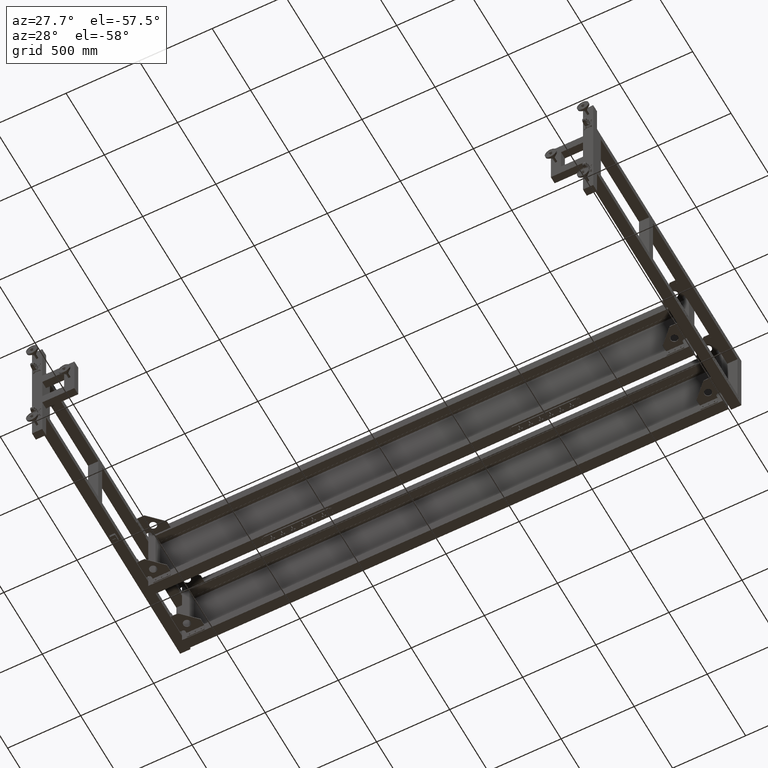
[diagram: clean part render]
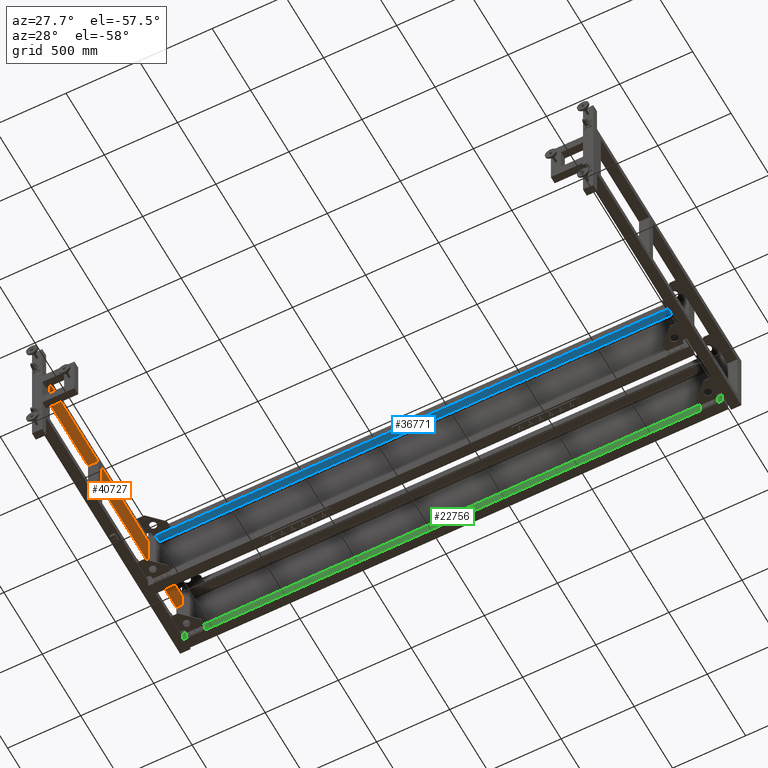
[diagram: same view with three faces highlighted in distinct colors, each labeled with its STEP entity id]
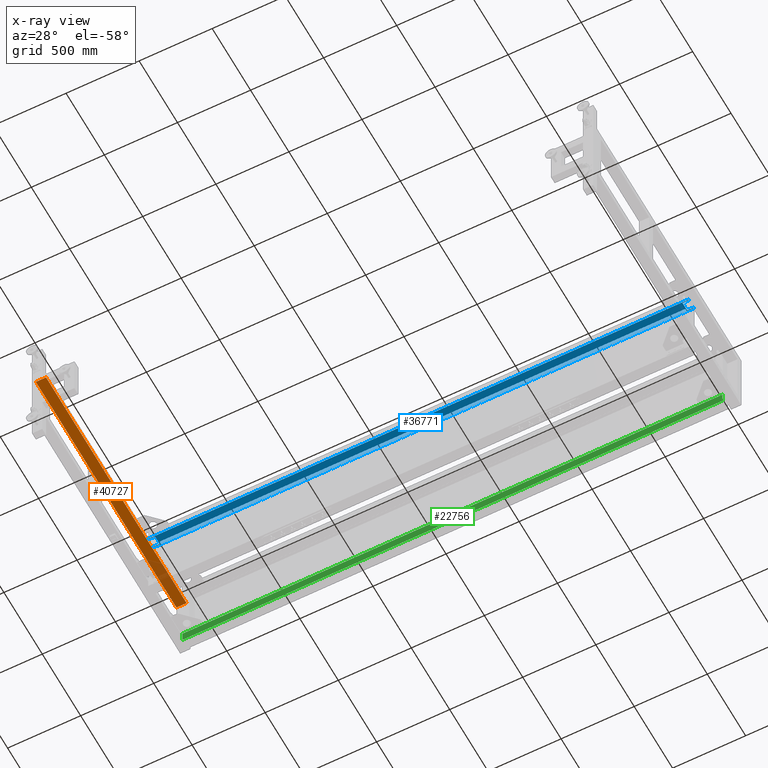
[diagram: x-ray of the same camera — body ghosted, the three highlighted faces saturated]
A machine part, auxiliary view with three faces highlighted in distinct colors.
The next image is the same camera in x-ray (body ghosted, the three faces saturated) — at least one of them is partly hidden behind the body in this view.
Their STEP definitions:

[orange] entity #40727 — the highlighted planar face has unit normal (-0, 0, 1).
#3018 = DIRECTION ( 'NONE',  ( -1.000000000000000078E-15, -1.000000000000000000, 0.000000000000000000 ) ) ;
#5408 = EDGE_CURVE ( 'NONE', #36055, #50908, #72533, .T. ) ;
#7190 = VECTOR ( 'NONE', #3018, 1000.000000000000000 ) ;
#8014 = EDGE_CURVE ( 'NONE', #50908, #57116, #77255, .T. ) ;
#8567 = CARTESIAN_POINT ( 'NONE',  ( -1338.172487437185055, 919.4410804020136538, 199.9999999999999716 ) ) ;
#9923 = VECTOR ( 'NONE', #45814, 1000.000000000000000 ) ;
#10126 = EDGE_CURVE ( 'NONE', #47010, #36055, #63568, .T. ) ;
#11009 = VECTOR ( 'NONE', #24042, 1000.000000000000000 ) ;
#11845 = EDGE_CURVE ( 'NONE', #41204, #73875, #48027, .T. ) ;
#12558 = CARTESIAN_POINT ( 'NONE',  ( -1268.172487437185055, -844.5589195979888473, 199.9999999999999716 ) ) ;
#16021 = CARTESIAN_POINT ( 'NONE',  ( -1268.172487437185964, 986.4410804020135402, 199.9999999999999716 ) ) ;
#16484 = CARTESIAN_POINT ( 'NONE',  ( -1268.172487437185964, 926.9410804020111527, 199.9999999999999716 ) ) ;
#19384 = VERTEX_POINT ( 'NONE', #41719 ) ;
#23184 = EDGE_LOOP ( 'NONE', ( #40573, #29494, #33352, #32423, #46770, #66275, #60953, #49711 ) ) ;
#24042 = DIRECTION ( 'NONE',  ( 0.000000000000000000, 1.000000000000000000, 0.000000000000000000 ) ) ;
#26259 = DIRECTION ( 'NONE',  ( -1.000000000000000000, 0.000000000000000000, 0.000000000000000000 ) ) ;
#27501 = DIRECTION ( 'NONE',  ( -0.000000000000000000, 0.000000000000000000, 1.000000000000000000 ) ) ;
#27959 = CARTESIAN_POINT ( 'NONE',  ( -1268.172487437185964, 996.9410804020109254, 199.9999999999999716 ) ) ;
#28806 = CARTESIAN_POINT ( 'NONE',  ( -1338.172487437185055, 986.4410804020136538, 199.9999999999999716 ) ) ;
#29494 = ORIENTED_EDGE ( 'NONE', *, *, #10126, .T. ) ;
#32423 = ORIENTED_EDGE ( 'NONE', *, *, #8014, .T. ) ;
#33015 = CARTESIAN_POINT ( 'NONE',  ( -1268.156444386293742, 926.9410804020111527, 199.9999999999999716 ) ) ;
#33352 = ORIENTED_EDGE ( 'NONE', *, *, #5408, .T. ) ;
#34577 = EDGE_CURVE ( 'NONE', #47010, #41204, #44266, .T. ) ;
#36055 = VERTEX_POINT ( 'NONE', #67116 ) ;
#37479 = EDGE_CURVE ( 'NONE', #57116, #56806, #74170, .T. ) ;
#40385 = CARTESIAN_POINT ( 'NONE',  ( -1338.172487437185964, 986.4410804020109254, 199.9999999999999716 ) ) ;
#40573 = ORIENTED_EDGE ( 'NONE', *, *, #34577, .F. ) ;
#40727 = ADVANCED_FACE ( 'NONE', ( #50845 ), #63917, .F. ) ;
#41204 = VERTEX_POINT ( 'NONE', #40385 ) ;
#41719 = CARTESIAN_POINT ( 'NONE',  ( -1268.172487437185055, -844.5589195979888473, 199.9999999999999716 ) ) ;
#42945 = EDGE_CURVE ( 'NONE', #73875, #19384, #72097, .T. ) ;
#44266 = LINE ( 'NONE', #74934, #49059 ) ;
#44664 = VECTOR ( 'NONE', #65942, 1000.000000000000000 ) ;
#45814 = DIRECTION ( 'NONE',  ( -1.000000000000000000, 1.585669478376821542E-15, -0.000000000000000000 ) ) ;
#46061 = CARTESIAN_POINT ( 'NONE',  ( -1268.172487437185055, 919.4410804020135402, 199.9999999999999716 ) ) ;
#46153 = CARTESIAN_POINT ( 'NONE',  ( -1268.156444386293742, 986.4410804020136538, 199.9999999999999716 ) ) ;
#46519 = EDGE_CURVE ( 'NONE', #19384, #56806, #56746, .T. ) ;
#46770 = ORIENTED_EDGE ( 'NONE', *, *, #37479, .T. ) ;
#46968 = DIRECTION ( 'NONE',  ( -1.000000000000000078E-15, -1.000000000000000000, -0.000000000000000000 ) ) ;
#47010 = VERTEX_POINT ( 'NONE', #16021 ) ;
#48027 = LINE ( 'NONE', #28806, #53808 ) ;
#49059 = VECTOR ( 'NONE', #26259, 1000.000000000000000 ) ;
#49711 = ORIENTED_EDGE ( 'NONE', *, *, #11845, .F. ) ;
#50605 = CARTESIAN_POINT ( 'NONE',  ( -1338.172487437185055, -844.5589195979888473, 199.9999999999999716 ) ) ;
#50845 = FACE_OUTER_BOUND ( 'NONE', #23184, .T. ) ;
#50908 = VERTEX_POINT ( 'NONE', #33015 ) ;
#52074 = DIRECTION ( 'NONE',  ( 1.000000000000000000, 0.000000000000000000, 0.000000000000000000 ) ) ;
#53785 = DIRECTION ( 'NONE',  ( -1.000000000000000078E-15, -1.000000000000000000, -0.000000000000000000 ) ) ;
#53808 = VECTOR ( 'NONE', #53785, 1000.000000000000000 ) ;
#55804 = CARTESIAN_POINT ( 'NONE',  ( -1268.156444386293742, 919.4410804020135402, 199.9999999999999716 ) ) ;
#56746 = LINE ( 'NONE', #12558, #11009 ) ;
#56806 = VERTEX_POINT ( 'NONE', #46061 ) ;
#57116 = VERTEX_POINT ( 'NONE', #55804 ) ;
#58602 = CARTESIAN_POINT ( 'NONE',  ( -1338.172487437185055, 986.4410804020136538, 199.9999999999999716 ) ) ;
#60953 = ORIENTED_EDGE ( 'NONE', *, *, #42945, .F. ) ;
#63568 = LINE ( 'NONE', #27959, #7190 ) ;
#63917 = PLANE ( 'NONE',  #79426 ) ;
#65942 = DIRECTION ( 'NONE',  ( 1.000000000000000000, 0.000000000000000000, 0.000000000000000000 ) ) ;
#66275 = ORIENTED_EDGE ( 'NONE', *, *, #46519, .F. ) ;
#67116 = CARTESIAN_POINT ( 'NONE',  ( -1268.172487437185964, 926.9410804020111527, 199.9999999999999716 ) ) ;
#67316 = VECTOR ( 'NONE', #46968, 1000.000000000000000 ) ;
#72097 = LINE ( 'NONE', #77425, #44664 ) ;
#72533 = LINE ( 'NONE', #16484, #80387 ) ;
#73875 = VERTEX_POINT ( 'NONE', #50605 ) ;
#74170 = LINE ( 'NONE', #8567, #9923 ) ;
#74934 = CARTESIAN_POINT ( 'NONE',  ( -1338.172487437185964, 986.4410804020109254, 199.9999999999999716 ) ) ;
#77255 = LINE ( 'NONE', #46153, #67316 ) ;
#77425 = CARTESIAN_POINT ( 'NONE',  ( -1338.172487437185055, -844.5589195979888473, 199.9999999999999716 ) ) ;
#79074 = DIRECTION ( 'NONE',  ( 1.000000000000000000, -4.448884876874220047E-16, 0.000000000000000000 ) ) ;
#79426 = AXIS2_PLACEMENT_3D ( 'NONE', #58602, #27501, #52074 ) ;
#80387 = VECTOR ( 'NONE', #79074, 1000.000000000000000 ) ;

[blue] entity #36771 — the highlighted planar face has unit normal (0, -0, 1).
#586 = EDGE_LOOP ( 'NONE', ( #5231, #52646, #36741, #74212, #36667, #5449, #17699, #54605, #12137, #21869, #56340, #38493 ) ) ;
#1875 = DIRECTION ( 'NONE',  ( 3.373438344553770128E-16, -1.000000000000000000, -3.396508223080412663E-15 ) ) ;
#2452 = DIRECTION ( 'NONE',  ( 0.000000000000000000, -1.000000000000000000, 4.000602769257180823E-15 ) ) ;
#2689 = LINE ( 'NONE', #3079, #34941 ) ;
#2862 = LINE ( 'NONE', #8574, #28736 ) ;
#2875 = EDGE_CURVE ( 'NONE', #65112, #26776, #43229, .T. ) ;
#3079 = CARTESIAN_POINT ( 'NONE',  ( -1266.172487437185964, 556.9410804020109254, 230.0000000000000853 ) ) ;
#3788 = EDGE_CURVE ( 'NONE', #20792, #51738, #25923, .T. ) ;
#5231 = ORIENTED_EDGE ( 'NONE', *, *, #3788, .F. ) ;
#5449 = ORIENTED_EDGE ( 'NONE', *, *, #23958, .F. ) ;
#6130 = LINE ( 'NONE', #13914, #44316 ) ;
#6294 = LINE ( 'NONE', #43935, #43654 ) ;
#7616 = CARTESIAN_POINT ( 'NONE',  ( 2384.827512562816082, 491.9410804020113801, 229.9999999999998579 ) ) ;
#7666 = FACE_OUTER_BOUND ( 'NONE', #586, .T. ) ;
#8159 = VECTOR ( 'NONE', #20198, 1000.000000000000000 ) ;
#8574 = CARTESIAN_POINT ( 'NONE',  ( -1216.601776759067889, 555.4410804020136538, 230.0000000000001137 ) ) ;
#9496 = VERTEX_POINT ( 'NONE', #68580 ) ;
#10407 = LINE ( 'NONE', #79936, #46553 ) ;
#10919 = VERTEX_POINT ( 'NONE', #37755 ) ;
#11540 = VERTEX_POINT ( 'NONE', #38626 ) ;
#12040 = DIRECTION ( 'NONE',  ( -1.000000000000000000, -0.000000000000000000, 0.000000000000000000 ) ) ;
#12137 = ORIENTED_EDGE ( 'NONE', *, *, #70474, .F. ) ;
#12845 = VECTOR ( 'NONE', #14617, 1000.000000000000000 ) ;
#13157 = ORIENTED_EDGE ( 'NONE', *, *, #24142, .T. ) ;
#13496 = DIRECTION ( 'NONE',  ( 1.000000000000000000, -5.656706986880889162E-17, -1.864484265141417748E-31 ) ) ;
#13914 = CARTESIAN_POINT ( 'NONE',  ( -1267.172487437185964, 551.9410804020110390, 230.0000000000000568 ) ) ;
#14617 = DIRECTION ( 'NONE',  ( -1.000000000000000000, -2.782626725923983129E-16, -1.864484265141417748E-31 ) ) ;
#14619 = FACE_BOUND ( 'NONE', #40963, .T. ) ;
#15080 = CARTESIAN_POINT ( 'NONE',  ( 2429.827512562816082, 486.9410804020113801, 229.9999999999998295 ) ) ;
#16002 = VERTEX_POINT ( 'NONE', #43006 ) ;
#16060 = VECTOR ( 'NONE', #28223, 1000.000000000000000 ) ;
#16583 = VECTOR ( 'NONE', #1875, 1000.000000000000000 ) ;
#17057 = CARTESIAN_POINT ( 'NONE',  ( -1221.172487437186192, 491.9410804020110390, 229.9999999999998579 ) ) ;
#17082 = VECTOR ( 'NONE', #50332, 1000.000000000000000 ) ;
#17699 = ORIENTED_EDGE ( 'NONE', *, *, #26116, .T. ) ;
#18034 = EDGE_CURVE ( 'NONE', #75148, #10919, #32938, .T. ) ;
#18202 = DIRECTION ( 'NONE',  ( -2.216956027235894459E-16, 1.000000000000000000, 3.396508223080412663E-15 ) ) ;
#18307 = CARTESIAN_POINT ( 'NONE',  ( 681.8275125628146043, 536.9410804020135402, 230.0000000000001421 ) ) ;
#19100 = CARTESIAN_POINT ( 'NONE',  ( 2380.256801884697779, 555.4410804020139949, 230.0000000000001137 ) ) ;
#19910 = LINE ( 'NONE', #18307, #38225 ) ;
#20198 = DIRECTION ( 'NONE',  ( 1.000000000000000000, 4.543257172554223644E-16, 0.000000000000000000 ) ) ;
#20285 = AXIS2_PLACEMENT_3D ( 'NONE', #27690, #21182, #34220 ) ;
#20397 = VERTEX_POINT ( 'NONE', #77767 ) ;
#20648 = VERTEX_POINT ( 'NONE', #62553 ) ;
#20792 = VERTEX_POINT ( 'NONE', #15080 ) ;
#21182 = DIRECTION ( 'NONE',  ( 1.543121034614948572E-30, -3.396508223080412663E-15, 1.000000000000000000 ) ) ;
#21869 = ORIENTED_EDGE ( 'NONE', *, *, #39948, .T. ) ;
#22498 = EDGE_CURVE ( 'NONE', #62065, #20397, #38288, .T. ) ;
#23958 = EDGE_CURVE ( 'NONE', #36693, #27195, #6130, .T. ) ;
#24142 = EDGE_CURVE ( 'NONE', #9496, #11540, #2862, .T. ) ;
#25209 = DIRECTION ( 'NONE',  ( -1.000000000000000000, -4.543257172554223644E-16, 0.000000000000000000 ) ) ;
#25923 = LINE ( 'NONE', #68469, #59555 ) ;
#26116 = EDGE_CURVE ( 'NONE', #36693, #77341, #2689, .T. ) ;
#26554 = CARTESIAN_POINT ( 'NONE',  ( -1266.172487437185964, 486.9410804020109822, 229.9999999999998295 ) ) ;
#26776 = VERTEX_POINT ( 'NONE', #52210 ) ;
#27195 = VERTEX_POINT ( 'NONE', #45122 ) ;
#27690 = CARTESIAN_POINT ( 'NONE',  ( -566.1724874371851683, 556.9410804020109254, 230.0000000000000853 ) ) ;
#27737 = VECTOR ( 'NONE', #28115, 1000.000000000000000 ) ;
#28010 = VECTOR ( 'NONE', #38715, 1000.000000000000000 ) ;
#28115 = DIRECTION ( 'NONE',  ( -1.156482317317875916E-16, -1.000000000000000000, -3.396508223080412663E-15 ) ) ;
#28223 = DIRECTION ( 'NONE',  ( -1.000000000000000000, -4.311960709090649200E-16, -9.253252722517677530E-32 ) ) ;
#28736 = VECTOR ( 'NONE', #2452, 1000.000000000000000 ) ;
#30489 = CARTESIAN_POINT ( 'NONE',  ( -566.1724874371851683, 556.9410804020109254, 230.0000000000000853 ) ) ;
#31881 = CARTESIAN_POINT ( 'NONE',  ( 2429.827512562815627, 556.9410804020113801, 230.0000000000000853 ) ) ;
#32588 = CARTESIAN_POINT ( 'NONE',  ( 2430.827512562816082, 491.9410804020113801, 229.9999999999998579 ) ) ;
#32938 = LINE ( 'NONE', #7616, #16583 ) ;
#34220 = DIRECTION ( 'NONE',  ( 4.543257172554223644E-16, -1.000000000000000000, -3.396508223080412663E-15 ) ) ;
#34941 = VECTOR ( 'NONE', #64042, 1000.000000000000000 ) ;
#36667 = ORIENTED_EDGE ( 'NONE', *, *, #43364, .F. ) ;
#36693 = VERTEX_POINT ( 'NONE', #44067 ) ;
#36741 = ORIENTED_EDGE ( 'NONE', *, *, #22498, .T. ) ;
#36771 = ADVANCED_FACE ( 'NONE', ( #7666, #14619 ), #51435, .F. ) ;
#37058 = DIRECTION ( 'NONE',  ( 2.216956027235894459E-16, -1.000000000000000000, 4.000602769257180823E-15 ) ) ;
#37755 = CARTESIAN_POINT ( 'NONE',  ( 2384.827512562816082, 491.9410804020113801, 229.9999999999998579 ) ) ;
#38225 = VECTOR ( 'NONE', #25209, 1000.000000000000000 ) ;
#38288 = LINE ( 'NONE', #44848, #40247 ) ;
#38493 = ORIENTED_EDGE ( 'NONE', *, *, #46594, .T. ) ;
#38626 = CARTESIAN_POINT ( 'NONE',  ( -1216.601776759067889, 536.9410804020129717, 230.0000000000000284 ) ) ;
#38715 = DIRECTION ( 'NONE',  ( 1.000000000000000000, 2.216956027235894459E-16, 0.000000000000000000 ) ) ;
#39948 = EDGE_CURVE ( 'NONE', #16002, #75148, #58802, .T. ) ;
#40247 = VECTOR ( 'NONE', #63675, 1000.000000000000000 ) ;
#40963 = EDGE_LOOP ( 'NONE', ( #65464, #77193, #71846, #13157 ) ) ;
#42100 = LINE ( 'NONE', #67049, #16060 ) ;
#43006 = CARTESIAN_POINT ( 'NONE',  ( 2429.827512562815627, 551.9410804020114938, 230.0000000000000568 ) ) ;
#43229 = LINE ( 'NONE', #19100, #49438 ) ;
#43364 = EDGE_CURVE ( 'NONE', #27195, #20648, #59229, .T. ) ;
#43654 = VECTOR ( 'NONE', #12040, 1000.000000000000000 ) ;
#43779 = LINE ( 'NONE', #31881, #17082 ) ;
#43935 = CARTESIAN_POINT ( 'NONE',  ( -1267.172487437185964, 491.9410804020110390, 229.9999999999998579 ) ) ;
#44067 = CARTESIAN_POINT ( 'NONE',  ( -1266.172487437185964, 551.9410804020110390, 230.0000000000000568 ) ) ;
#44316 = VECTOR ( 'NONE', #13496, 1000.000000000000000 ) ;
#44848 = CARTESIAN_POINT ( 'NONE',  ( -1266.172487437185964, 556.9410804020109254, 230.0000000000000853 ) ) ;
#44962 = CARTESIAN_POINT ( 'NONE',  ( 2384.827512562815627, 551.9410804020113801, 230.0000000000000568 ) ) ;
#45122 = CARTESIAN_POINT ( 'NONE',  ( -1221.172487437186192, 551.9410804020110390, 230.0000000000000568 ) ) ;
#46345 = CARTESIAN_POINT ( 'NONE',  ( -1266.172487437185964, 556.9410804020109254, 230.0000000000000853 ) ) ;
#46553 = VECTOR ( 'NONE', #53395, 1000.000000000000000 ) ;
#46594 = EDGE_CURVE ( 'NONE', #10919, #51738, #52265, .T. ) ;
#47173 = VERTEX_POINT ( 'NONE', #79007 ) ;
#49438 = VECTOR ( 'NONE', #37058, 1000.000000000000000 ) ;
#50332 = DIRECTION ( 'NONE',  ( -2.216956027235894459E-16, 1.000000000000000000, 3.396508223080412663E-15 ) ) ;
#51285 = LINE ( 'NONE', #30489, #8159 ) ;
#51435 = PLANE ( 'NONE',  #20285 ) ;
#51738 = VERTEX_POINT ( 'NONE', #59442 ) ;
#52210 = CARTESIAN_POINT ( 'NONE',  ( 2380.256801884697779, 536.9410804020133128, 230.0000000000000284 ) ) ;
#52265 = LINE ( 'NONE', #32588, #28010 ) ;
#52646 = ORIENTED_EDGE ( 'NONE', *, *, #77106, .F. ) ;
#53395 = DIRECTION ( 'NONE',  ( 1.000000000000000000, 4.543257172554223644E-16, 0.000000000000000000 ) ) ;
#54605 = ORIENTED_EDGE ( 'NONE', *, *, #55486, .T. ) ;
#54897 = EDGE_CURVE ( 'NONE', #65112, #9496, #42100, .T. ) ;
#55486 = EDGE_CURVE ( 'NONE', #77341, #47173, #51285, .T. ) ;
#56340 = ORIENTED_EDGE ( 'NONE', *, *, #18034, .T. ) ;
#57082 = EDGE_CURVE ( 'NONE', #20648, #20397, #6294, .T. ) ;
#58802 = LINE ( 'NONE', #65724, #12845 ) ;
#59229 = LINE ( 'NONE', #17057, #27737 ) ;
#59442 = CARTESIAN_POINT ( 'NONE',  ( 2429.827512562816082, 491.9410804020113801, 229.9999999999998579 ) ) ;
#59555 = VECTOR ( 'NONE', #18202, 1000.000000000000000 ) ;
#62065 = VERTEX_POINT ( 'NONE', #26554 ) ;
#62553 = CARTESIAN_POINT ( 'NONE',  ( -1221.172487437186192, 491.9410804020110390, 229.9999999999998579 ) ) ;
#63675 = DIRECTION ( 'NONE',  ( 0.000000000000000000, 1.000000000000000000, 3.396508223080412663E-15 ) ) ;
#64042 = DIRECTION ( 'NONE',  ( 0.000000000000000000, 1.000000000000000000, 3.396508223080412663E-15 ) ) ;
#65112 = VERTEX_POINT ( 'NONE', #75554 ) ;
#65464 = ORIENTED_EDGE ( 'NONE', *, *, #72634, .F. ) ;
#65724 = CARTESIAN_POINT ( 'NONE',  ( 2430.827512562816082, 551.9410804020114938, 230.0000000000000568 ) ) ;
#67049 = CARTESIAN_POINT ( 'NONE',  ( -518.1724874371851683, 555.4310804020129808, 230.0000000000001137 ) ) ;
#68469 = CARTESIAN_POINT ( 'NONE',  ( 2429.827512562815627, 556.9410804020113801, 230.0000000000000853 ) ) ;
#68580 = CARTESIAN_POINT ( 'NONE',  ( -1216.601776759067889, 555.4310804020128671, 230.0000000000001137 ) ) ;
#70474 = EDGE_CURVE ( 'NONE', #16002, #47173, #43779, .T. ) ;
#71846 = ORIENTED_EDGE ( 'NONE', *, *, #54897, .T. ) ;
#72634 = EDGE_CURVE ( 'NONE', #26776, #11540, #19910, .T. ) ;
#74212 = ORIENTED_EDGE ( 'NONE', *, *, #57082, .F. ) ;
#75148 = VERTEX_POINT ( 'NONE', #44962 ) ;
#75554 = CARTESIAN_POINT ( 'NONE',  ( 2380.256801884697779, 555.4310804020132082, 230.0000000000001137 ) ) ;
#77106 = EDGE_CURVE ( 'NONE', #62065, #20792, #10407, .T. ) ;
#77193 = ORIENTED_EDGE ( 'NONE', *, *, #2875, .F. ) ;
#77341 = VERTEX_POINT ( 'NONE', #46345 ) ;
#77767 = CARTESIAN_POINT ( 'NONE',  ( -1266.172487437185964, 491.9410804020110390, 229.9999999999998579 ) ) ;
#79007 = CARTESIAN_POINT ( 'NONE',  ( 2429.827512562815627, 556.9410804020113801, 230.0000000000000853 ) ) ;
#79936 = CARTESIAN_POINT ( 'NONE',  ( -566.1724874371851683, 486.9410804020109254, 229.9999999999998295 ) ) ;

[green] entity #22756 — the highlighted planar face has unit normal (-0, 1, 0).
#3694 = AXIS2_PLACEMENT_3D ( 'NONE', #74860, #37204, #33499 ) ;
#8162 = EDGE_CURVE ( 'NONE', #58772, #52211, #29724, .T. ) ;
#8595 = LINE ( 'NONE', #27003, #54485 ) ;
#8846 = ORIENTED_EDGE ( 'NONE', *, *, #19956, .T. ) ;
#18411 = VECTOR ( 'NONE', #36318, 1000.000000000000000 ) ;
#18448 = FACE_OUTER_BOUND ( 'NONE', #48356, .T. ) ;
#18906 = VERTEX_POINT ( 'NONE', #47544 ) ;
#19087 = LINE ( 'NONE', #26417, #72978 ) ;
#19956 = EDGE_CURVE ( 'NONE', #18906, #58772, #19087, .T. ) ;
#22756 = ADVANCED_FACE ( 'NONE', ( #18448 ), #43371, .F. ) ;
#24926 = VERTEX_POINT ( 'NONE', #77832 ) ;
#26417 = CARTESIAN_POINT ( 'NONE',  ( 2429.827512562815627, 926.9410804020145633, -299.9999999999991473 ) ) ;
#27003 = CARTESIAN_POINT ( 'NONE',  ( -1266.172487437185964, 926.9410804020142223, -299.9999999999991473 ) ) ;
#29724 = LINE ( 'NONE', #43219, #75195 ) ;
#30568 = LINE ( 'NONE', #67429, #18411 ) ;
#33499 = DIRECTION ( 'NONE',  ( 1.817302869021689462E-30, -4.000000000000000311E-15, 1.000000000000000000 ) ) ;
#36318 = DIRECTION ( 'NONE',  ( -1.000000000000000000, -4.543257172554223644E-16, 0.000000000000000000 ) ) ;
#37204 = DIRECTION ( 'NONE',  ( -4.543257172554223644E-16, 1.000000000000000000, 4.000000000000000311E-15 ) ) ;
#41961 = EDGE_CURVE ( 'NONE', #18906, #24926, #30568, .T. ) ;
#43219 = CARTESIAN_POINT ( 'NONE',  ( 1929.827512562814263, 926.9410804020147907, -229.9999999999991473 ) ) ;
#43371 = PLANE ( 'NONE',  #3694 ) ;
#45756 = ORIENTED_EDGE ( 'NONE', *, *, #8162, .T. ) ;
#47544 = CARTESIAN_POINT ( 'NONE',  ( 2429.827512562815627, 926.9410804020145633, -299.9999999999991473 ) ) ;
#48356 = EDGE_LOOP ( 'NONE', ( #59196, #8846, #45756, #59191 ) ) ;
#52211 = VERTEX_POINT ( 'NONE', #58957 ) ;
#54485 = VECTOR ( 'NONE', #63835, 1000.000000000000000 ) ;
#57109 = DIRECTION ( 'NONE',  ( 8.867824108943578832E-31, -4.000000000000000311E-15, 1.000000000000000000 ) ) ;
#58772 = VERTEX_POINT ( 'NONE', #79531 ) ;
#58957 = CARTESIAN_POINT ( 'NONE',  ( -1266.172487437185964, 926.9410804020137675, -229.9999999999991473 ) ) ;
#59191 = ORIENTED_EDGE ( 'NONE', *, *, #77676, .F. ) ;
#59196 = ORIENTED_EDGE ( 'NONE', *, *, #41961, .F. ) ;
#63835 = DIRECTION ( 'NONE',  ( 0.000000000000000000, -4.000000000000000311E-15, 1.000000000000000000 ) ) ;
#67429 = CARTESIAN_POINT ( 'NONE',  ( 1929.827512562814263, 926.9410804020152455, -299.9999999999991473 ) ) ;
#72978 = VECTOR ( 'NONE', #57109, 1000.000000000000000 ) ;
#74310 = DIRECTION ( 'NONE',  ( -1.000000000000000000, -4.543257172554223644E-16, 0.000000000000000000 ) ) ;
#74860 = CARTESIAN_POINT ( 'NONE',  ( 1929.827512562814263, 926.9410804020152455, -299.9999999999991473 ) ) ;
#75195 = VECTOR ( 'NONE', #74310, 1000.000000000000000 ) ;
#77676 = EDGE_CURVE ( 'NONE', #24926, #52211, #8595, .T. ) ;
#77832 = CARTESIAN_POINT ( 'NONE',  ( -1266.172487437185964, 926.9410804020142223, -299.9999999999991473 ) ) ;
#79531 = CARTESIAN_POINT ( 'NONE',  ( 2429.827512562815627, 926.9410804020142223, -229.9999999999991473 ) ) ;